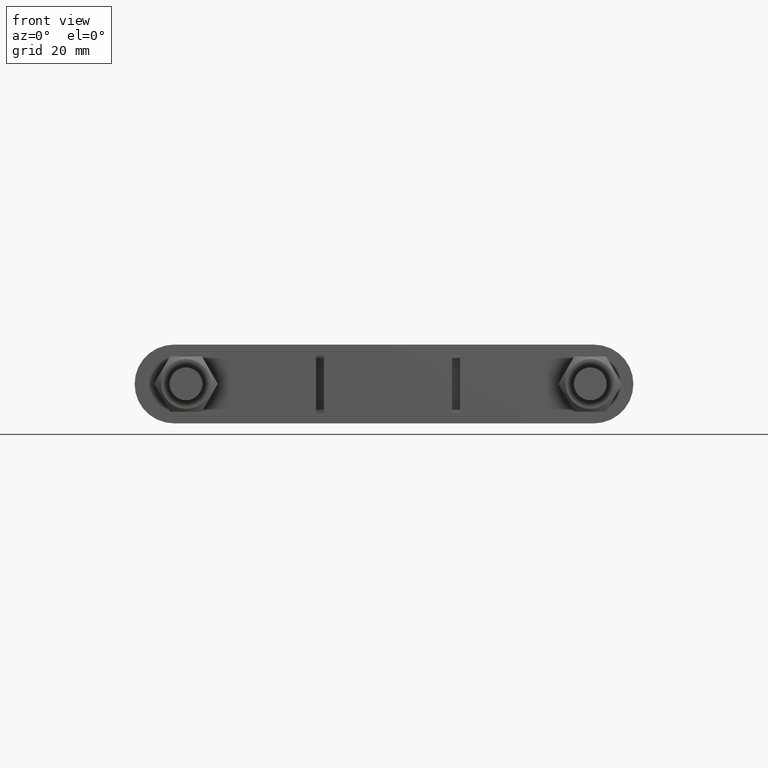
[diagram: clean part render]
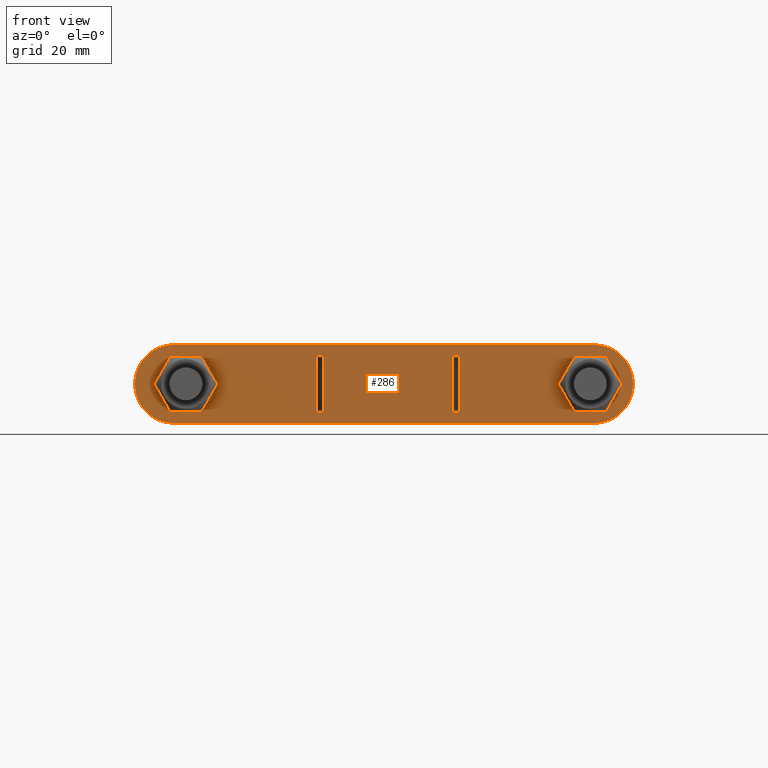
[diagram: same view with one face highlighted and labeled with its STEP entity id]
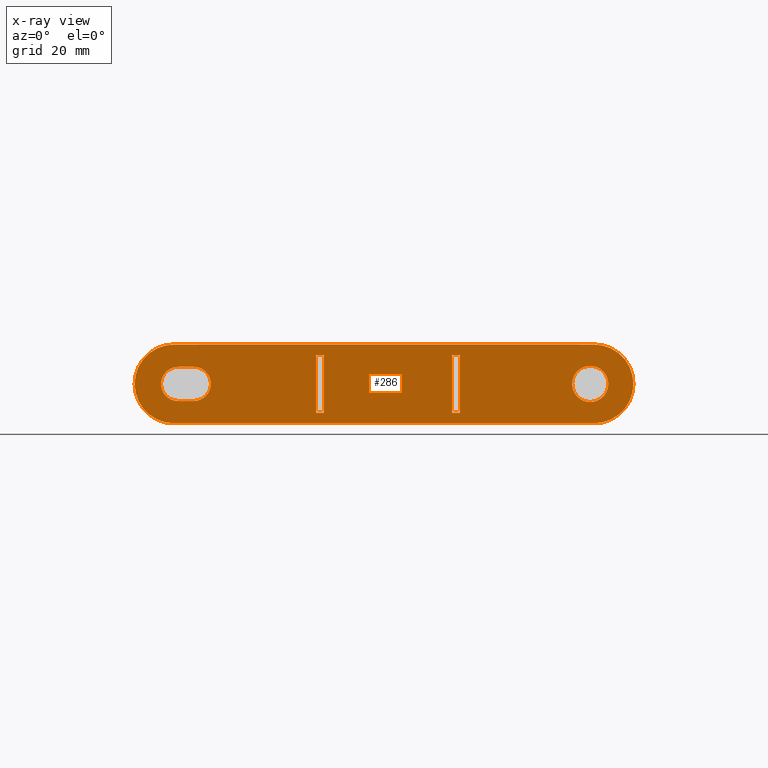
[diagram: x-ray of the same camera — body ghosted, the highlighted face saturated]
A machine part, front view. The second image highlights one B-rep face of the part: STEP entity #286.
The next image is the same camera in x-ray: the body ghosted, the highlighted face saturated — about 0% of this face is hidden behind the body in this view.
In plain terms, the highlighted planar face has unit normal (0, 1, 0).
Its self-contained STEP definition (entity closure, byte-faithful):
#286 = ADVANCED_FACE( '', ( #397, #398, #399, #400, #401 ), #402, .F. );
#397 = FACE_OUTER_BOUND( '', #1430, .T. );
#398 = FACE_BOUND( '', #1431, .T. );
#399 = FACE_BOUND( '', #1432, .T. );
#400 = FACE_BOUND( '', #1433, .T. );
#401 = FACE_BOUND( '', #1434, .T. );
#402 = PLANE( '', #1435 );
#1430 = EDGE_LOOP( '', ( #1726, #1727, #1728, #1729, #1730, #1731 ) );
#1431 = EDGE_LOOP( '', ( #1732, #1733, #1734, #1735 ) );
#1432 = EDGE_LOOP( '', ( #1736, #1737, #1738, #1739 ) );
#1433 = EDGE_LOOP( '', ( #1740 ) );
#1434 = EDGE_LOOP( '', ( #1741, #1742, #1743, #1744 ) );
#1435 = AXIS2_PLACEMENT_3D( '', #1745, #1746, #1747 );
#1726 = ORIENTED_EDGE( '', *, *, #2204, .F. );
#1727 = ORIENTED_EDGE( '', *, *, #2205, .F. );
#1728 = ORIENTED_EDGE( '', *, *, #2206, .F. );
#1729 = ORIENTED_EDGE( '', *, *, #2207, .F. );
#1730 = ORIENTED_EDGE( '', *, *, #2208, .F. );
#1731 = ORIENTED_EDGE( '', *, *, #2209, .F. );
#1732 = ORIENTED_EDGE( '', *, *, #2210, .F. );
#1733 = ORIENTED_EDGE( '', *, *, #2211, .T. );
#1734 = ORIENTED_EDGE( '', *, *, #2212, .T. );
#1735 = ORIENTED_EDGE( '', *, *, #2213, .F. );
#1736 = ORIENTED_EDGE( '', *, *, #2214, .F. );
#1737 = ORIENTED_EDGE( '', *, *, #2215, .F. );
#1738 = ORIENTED_EDGE( '', *, *, #2216, .T. );
#1739 = ORIENTED_EDGE( '', *, *, #2202, .T. );
#1740 = ORIENTED_EDGE( '', *, *, #2217, .T. );
#1741 = ORIENTED_EDGE( '', *, *, #2218, .F. );
#1742 = ORIENTED_EDGE( '', *, *, #2219, .F. );
#1743 = ORIENTED_EDGE( '', *, *, #2220, .F. );
#1744 = ORIENTED_EDGE( '', *, *, #2221, .F. );
#1745 = CARTESIAN_POINT( '', ( -81.5500000000051, 45.1100000002304, 1.37038447260441E-007 ) );
#1746 = DIRECTION( '', ( 2.95544344561994E-025, 1.00000000000000, 1.04599653145912E-013 ) );
#1747 = DIRECTION( '', ( 1.00000000000000, 4.59177480789956E-041, -2.82548111464310E-012 ) );
#2202 = EDGE_CURVE( '', #2430, #2428, #2431, .T. );
#2204 = EDGE_CURVE( '', #2433, #2434, #2435, .T. );
#2205 = EDGE_CURVE( '', #2436, #2433, #2437, .T. );
#2206 = EDGE_CURVE( '', #2438, #2436, #2439, .T. );
#2207 = EDGE_CURVE( '', #2440, #2438, #2441, .T. );
#2208 = EDGE_CURVE( '', #2442, #2440, #2443, .T. );
#2209 = EDGE_CURVE( '', #2434, #2442, #2444, .T. );
#2210 = EDGE_CURVE( '', #2445, #2446, #2447, .T. );
#2211 = EDGE_CURVE( '', #2445, #2448, #2449, .T. );
#2212 = EDGE_CURVE( '', #2448, #2450, #2451, .T. );
#2213 = EDGE_CURVE( '', #2446, #2450, #2452, .T. );
#2214 = EDGE_CURVE( '', #2453, #2428, #2454, .T. );
#2215 = EDGE_CURVE( '', #2455, #2453, #2456, .T. );
#2216 = EDGE_CURVE( '', #2455, #2430, #2457, .T. );
#2217 = EDGE_CURVE( '', #2458, #2458, #2459, .T. );
#2218 = EDGE_CURVE( '', #2460, #2461, #2462, .T. );
#2219 = EDGE_CURVE( '', #2463, #2460, #2464, .T. );
#2220 = EDGE_CURVE( '', #2465, #2463, #2466, .T. );
#2221 = EDGE_CURVE( '', #2461, #2465, #2467, .T. );
#2428 = VERTEX_POINT( '', #2935 );
#2430 = VERTEX_POINT( '', #2938 );
#2431 = LINE( '', #2939, #2940 );
#2433 = VERTEX_POINT( '', #2943 );
#2434 = VERTEX_POINT( '', #2944 );
#2435 = CIRCLE( '', #2945, 15.0000000000000 );
#2436 = VERTEX_POINT( '', #2946 );
#2437 = CIRCLE( '', #2947, 15.0000000000000 );
#2438 = VERTEX_POINT( '', #2948 );
#2439 = LINE( '', #2949, #2950 );
#2440 = VERTEX_POINT( '', #2951 );
#2441 = CIRCLE( '', #2952, 15.0000000000000 );
#2442 = VERTEX_POINT( '', #2953 );
#2443 = CIRCLE( '', #2954, 15.0000000000000 );
#2444 = LINE( '', #2955, #2956 );
#2445 = VERTEX_POINT( '', #2957 );
#2446 = VERTEX_POINT( '', #2958 );
#2447 = LINE( '', #2959, #2960 );
#2448 = VERTEX_POINT( '', #2961 );
#2449 = LINE( '', #2962, #2963 );
#2450 = VERTEX_POINT( '', #2964 );
#2451 = LINE( '', #2965, #2966 );
#2452 = LINE( '', #2967, #2968 );
#2453 = VERTEX_POINT( '', #2969 );
#2454 = LINE( '', #2970, #2971 );
#2455 = VERTEX_POINT( '', #2972 );
#2456 = LINE( '', #2973, #2974 );
#2457 = LINE( '', #2975, #2976 );
#2458 = VERTEX_POINT( '', #2977 );
#2459 = CIRCLE( '', #2978, 6.90000000000000 );
#2460 = VERTEX_POINT( '', #2979 );
#2461 = VERTEX_POINT( '', #2980 );
#2462 = CIRCLE( '', #2981, 6.50000000000000 );
#2463 = VERTEX_POINT( '', #2982 );
#2464 = LINE( '', #2983, #2984 );
#2465 = VERTEX_POINT( '', #2985 );
#2466 = CIRCLE( '', #2986, 6.50000000000000 );
#2467 = LINE( '', #2987, #2988 );
#2935 = CARTESIAN_POINT( '', ( -24.3999999815204, 45.1100000000678, 11.0000000410022 ) );
#2938 = CARTESIAN_POINT( '', ( -27.3999999815204, 45.1100000000763, 11.0000000460434 ) );
#2939 = CARTESIAN_POINT( '', ( -27.3999999815204, 45.1100000000763, 11.0000000460434 ) );
#2940 = VECTOR( '', #3388, 1000.00000000000 );
#2943 = CARTESIAN_POINT( '', ( -96.5500000000051, 45.1100000002728, 1.62244830560501E-007 ) );
#2944 = CARTESIAN_POINT( '', ( -81.5499999747987, 45.1100000002289, 15.0000001370384 ) );
#2945 = AXIS2_PLACEMENT_3D( '', #3390, #3391, #3392 );
#2946 = CARTESIAN_POINT( '', ( -81.5500000252115, 45.1100000002320, -14.9999998629615 ) );
#2947 = AXIS2_PLACEMENT_3D( '', #3393, #3394, #3395 );
#2948 = CARTESIAN_POINT( '', ( 78.4499999747886, 45.1099999997799, -15.0000001318295 ) );
#2949 = CARTESIAN_POINT( '', ( 78.4499999747885, 45.1099999997799, -15.0000001318295 ) );
#2950 = VECTOR( '', #3396, 1000.00000000000 );
#2951 = CARTESIAN_POINT( '', ( 93.4499999999949, 45.1099999997360, -1.57035881169787E-007 ) );
#2952 = AXIS2_PLACEMENT_3D( '', #3397, #3398, #3399 );
#2953 = CARTESIAN_POINT( '', ( 78.4500000252013, 45.1099999997768, 14.9999998681705 ) );
#2954 = AXIS2_PLACEMENT_3D( '', #3400, #3401, #3402 );
#2955 = CARTESIAN_POINT( '', ( -81.5499999747987, 45.1100000002289, 15.0000001370384 ) );
#2956 = VECTOR( '', #3403, 1000.00000000000 );
#2957 = CARTESIAN_POINT( '', ( 27.3999999815102, 45.1099999999237, -11.0000000460438 ) );
#2958 = CARTESIAN_POINT( '', ( 27.4000000184796, 45.1099999999214, 10.9999999539562 ) );
#2959 = CARTESIAN_POINT( '', ( 27.3999999815102, 45.1099999999237, -11.0000000460438 ) );
#2960 = VECTOR( '', #3404, 1000.00000000000 );
#2961 = CARTESIAN_POINT( '', ( 24.3999999815102, 45.1099999999322, -11.0000000410026 ) );
#2962 = CARTESIAN_POINT( '', ( 27.3999999815102, 45.1099999999237, -11.0000000460438 ) );
#2963 = VECTOR( '', #3405, 1000.00000000000 );
#2964 = CARTESIAN_POINT( '', ( 24.4000000184796, 45.1099999999299, 10.9999999589974 ) );
#2965 = CARTESIAN_POINT( '', ( 24.3999999815102, 45.1099999999322, -11.0000000410026 ) );
#2966 = VECTOR( '', #3406, 1000.00000000000 );
#2967 = CARTESIAN_POINT( '', ( 27.4000000184796, 45.1099999999214, 10.9999999539562 ) );
#2968 = VECTOR( '', #3407, 1000.00000000000 );
#2969 = CARTESIAN_POINT( '', ( -24.4000000184898, 45.1100000000701, -10.9999999589978 ) );
#2970 = CARTESIAN_POINT( '', ( -24.4000000184898, 45.1100000000701, -10.9999999589978 ) );
#2971 = VECTOR( '', #3408, 1000.00000000000 );
#2972 = CARTESIAN_POINT( '', ( -27.4000000184898, 45.1100000000786, -10.9999999539566 ) );
#2973 = CARTESIAN_POINT( '', ( -27.4000000184898, 45.1100000000786, -10.9999999539566 ) );
#2974 = VECTOR( '', #3409, 1000.00000000000 );
#2975 = CARTESIAN_POINT( '', ( -27.4000000184898, 45.1100000000786, -10.9999999539566 ) );
#2976 = VECTOR( '', #3410, 1000.00000000000 );
#2977 = CARTESIAN_POINT( '', ( 83.8999999999949, 45.1099999997630, -1.40987826601223E-007 ) );
#2978 = AXIS2_PLACEMENT_3D( '', #3411, #3412, #3413 );
#2979 = CARTESIAN_POINT( '', ( -79.9999999890823, 45.1099982002325, 6.50000013443379 ) );
#2980 = CARTESIAN_POINT( '', ( -80.0000000109278, 45.1099982002338, -6.49999986556621 ) );
#2981 = AXIS2_PLACEMENT_3D( '', #3414, #3415, #3416 );
#2982 = CARTESIAN_POINT( '', ( -73.9999999890823, 45.1099982002155, 6.50000012435124 ) );
#2983 = CARTESIAN_POINT( '', ( -73.9999999890823, 45.1099982002155, 6.50000012435124 ) );
#2984 = VECTOR( '', #3417, 1000.00000000000 );
#2985 = CARTESIAN_POINT( '', ( -74.0000000109278, 45.1099982002169, -6.49999987564876 ) );
#2986 = AXIS2_PLACEMENT_3D( '', #3418, #3419, #3420 );
#2987 = CARTESIAN_POINT( '', ( -80.0000000109278, 45.1099982002338, -6.49999986556621 ) );
#2988 = VECTOR( '', #3421, 1000.00000000000 );
#3388 = DIRECTION( '', ( 1.00000000000000, -2.82554255259044E-012, -1.68042474379972E-009 ) );
#3390 = CARTESIAN_POINT( '', ( -81.5500000000051, 45.1100000002304, 1.37038447260441E-007 ) );
#3391 = DIRECTION( '', ( 2.82548111464310E-012, 1.00000000000000, 1.04599653137929E-013 ) );
#3392 = DIRECTION( '', ( -1.00000000000000, 2.82548111446733E-012, 1.68042462815149E-009 ) );
#3393 = CARTESIAN_POINT( '', ( -81.5500000000051, 45.1100000002304, 1.37038461138229E-007 ) );
#3394 = DIRECTION( '', ( 2.82548111464310E-012, 1.00000000000000, 1.04599653137930E-013 ) );
#3395 = DIRECTION( '', ( -1.68042474379972E-009, 1.04599657885938E-013, -1.00000000000000 ) );
#3396 = DIRECTION( '', ( -1.00000000000000, 2.82548111446733E-012, 1.68042474379972E-009 ) );
#3397 = CARTESIAN_POINT( '', ( 78.4499999999949, 45.1099999997784, -1.31829497869727E-007 ) );
#3398 = DIRECTION( '', ( 2.82548111464310E-012, 1.00000000000000, 1.04599653137929E-013 ) );
#3399 = DIRECTION( '', ( 1.00000000000000, -2.82548111446733E-012, -1.68042462815149E-009 ) );
#3400 = CARTESIAN_POINT( '', ( 78.4499999999949, 45.1099999997784, -1.31829511747514E-007 ) );
#3401 = DIRECTION( '', ( 2.82548111464310E-012, 1.00000000000000, 1.04599653137930E-013 ) );
#3402 = DIRECTION( '', ( 1.68042474379972E-009, -1.04599657885938E-013, 1.00000000000000 ) );
#3403 = DIRECTION( '', ( 1.00000000000000, -2.82548111446733E-012, -1.68042474379972E-009 ) );
#3404 = DIRECTION( '', ( 1.68042500366579E-009, -1.04438905669724E-013, 1.00000000000000 ) );
#3405 = DIRECTION( '', ( -1.00000000000000, 2.82554213697960E-012, 1.68042474379972E-009 ) );
#3406 = DIRECTION( '', ( 1.68042500366579E-009, -1.04438905669724E-013, 1.00000000000000 ) );
#3407 = DIRECTION( '', ( -1.00000000000000, 2.82554213697960E-012, 1.68042474379972E-009 ) );
#3408 = DIRECTION( '', ( 1.68042448393365E-009, -1.04438905669723E-013, 1.00000000000000 ) );
#3409 = DIRECTION( '', ( 1.00000000000000, -2.82554255259044E-012, -1.68042474379972E-009 ) );
#3410 = DIRECTION( '', ( 1.68042448393365E-009, -1.04438905669723E-013, 1.00000000000000 ) );
#3411 = CARTESIAN_POINT( '', ( 76.9999999999949, 45.1099999997825, -1.29392895869005E-007 ) );
#3412 = DIRECTION( '', ( 2.82548111464310E-012, 1.00000000000000, 1.04599653137929E-013 ) );
#3413 = DIRECTION( '', ( 1.00000000000000, -2.82548111446733E-012, -1.68042474379972E-009 ) );
#3414 = CARTESIAN_POINT( '', ( -80.0000000000051, 45.1099982002332, 1.34433787172640E-007 ) );
#3415 = DIRECTION( '', ( -2.82548111464310E-012, -1.00000000000000, -1.04599653137930E-013 ) );
#3416 = DIRECTION( '', ( 1.68042474379972E-009, -1.04599657885938E-013, 1.00000000000000 ) );
#3417 = DIRECTION( '', ( -1.00000000000000, 2.82548111446733E-012, 1.68042474379972E-009 ) );
#3418 = CARTESIAN_POINT( '', ( -74.0000000000051, 45.1099982002162, 1.24351238709841E-007 ) );
#3419 = DIRECTION( '', ( -2.82548111464310E-012, -1.00000000000000, -1.04599653137930E-013 ) );
#3420 = DIRECTION( '', ( -1.68042474379972E-009, 1.04599657885938E-013, -1.00000000000000 ) );
#3421 = DIRECTION( '', ( 1.00000000000000, -2.82548111446733E-012, -1.68042474379972E-009 ) );